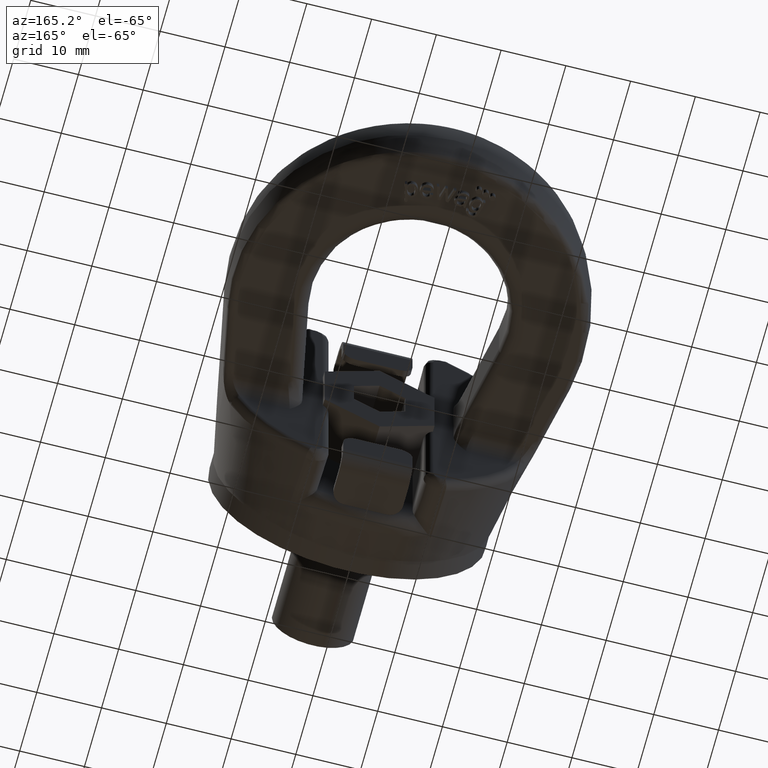
[diagram: clean part render]
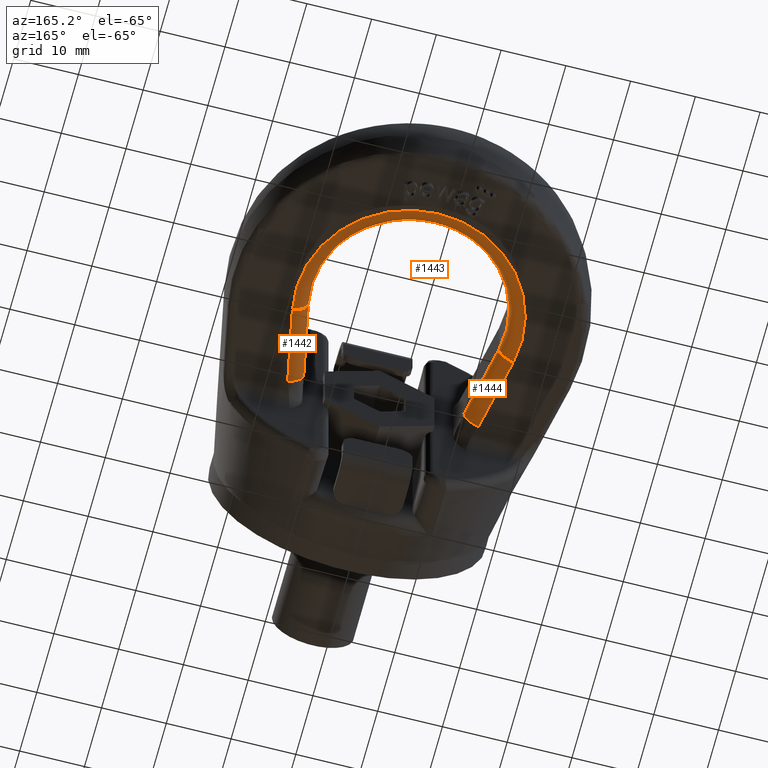
[diagram: same view with one multi-face feature highlighted, each face labeled with its STEP entity id]
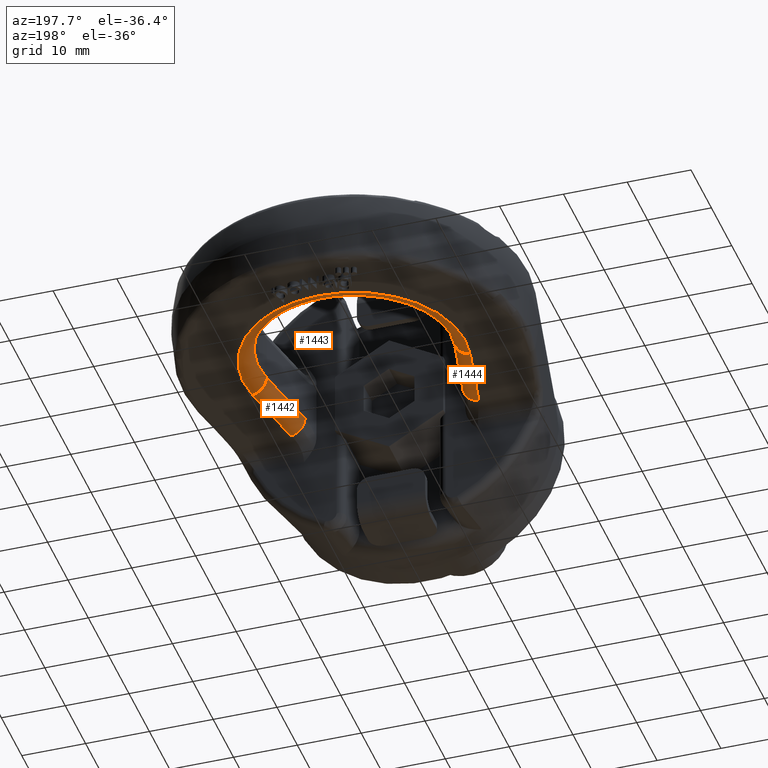
[diagram: same view with one multi-face feature highlighted, each face labeled with its STEP entity id]
A machine part, auxiliary view. The highlighted faces form ONE feature: a constant-radius fillet chain: 3 tangent blend faces with common blend radius 2.4 mm. The faces share edges in the B-rep.
A second angle (auxiliary view) of the same feature is appended — it is thin or edge-on in the first view.
Their STEP definitions:
[1] entity #1444 (Cylinder):
#1071=CYLINDRICAL_SURFACE('',#5242,2.4);
#1214=FACE_OUTER_BOUND('',#1973,.T.);
#1444=ADVANCED_FACE('',(#1214),#1071,.T.);
#1721=CIRCLE('',#5239,2.4);
#1722=CIRCLE('',#5241,2.4);
#1973=EDGE_LOOP('',(#3409,#3410,#3411,#3412));
#2136=LINE('',#6799,#2410);
#2230=LINE('',#8187,#2532);
#2410=VECTOR('',#5468,1.);
#2532=VECTOR('',#5790,1.);
#3409=ORIENTED_EDGE('',*,*,#4618,.F.);
#3410=ORIENTED_EDGE('',*,*,#4358,.F.);
#3411=ORIENTED_EDGE('',*,*,#4619,.F.);
#3412=ORIENTED_EDGE('',*,*,#4565,.F.);
#3966=VERTEX_POINT('',#6791);
#3968=VERTEX_POINT('',#6798);
#4086=VERTEX_POINT('',#8186);
#4087=VERTEX_POINT('',#8188);
#4358=EDGE_CURVE('',#3968,#3966,#2136,.T.);
#4565=EDGE_CURVE('',#4086,#4087,#2230,.T.);
#4618=EDGE_CURVE('',#3966,#4086,#1721,.T.);
#4619=EDGE_CURVE('',#4087,#3968,#1722,.T.);
#5239=AXIS2_PLACEMENT_3D('',#8643,#5867,#5868);
#5241=AXIS2_PLACEMENT_3D('',#8645,#5871,#5872);
#5242=AXIS2_PLACEMENT_3D('',#8646,#5873,#5874);
#5468=DIRECTION('',(-0.19766821154562,0.980268982547319,-3.08528463027214E-16));
#5790=DIRECTION('',(0.19766821154562,-0.980268982547319,3.08528463027214E-16));
#5867=DIRECTION('',(-0.197668211545619,0.980268982547319,-4.63118973645098E-16));
#5868=DIRECTION('',(-0.980268982547319,-0.197668211545619,-2.34910470705193E-15));
#5871=DIRECTION('',(0.197668211545618,-0.98026898254732,4.63118973645094E-16));
#5872=DIRECTION('',(-0.980268982547319,-0.197668211545618,-2.34910470705193E-15));
#5873=DIRECTION('',(-0.19766821154562,0.980268982547319,-3.08528463027214E-16));
#5874=DIRECTION('',(0.980268982547319,0.197668211545619,2.34910470705193E-15));
#6791=CARTESIAN_POINT('',(-14.7040347382098,33.0349768268157,-3.60000000000004));
#6798=CARTESIAN_POINT('',(-12.3728808880105,21.4744037077095,-3.60000000000004));
#6799=CARTESIAN_POINT('',(-14.7040347382098,33.0349768268157,-3.60000000000004));
#8186=CARTESIAN_POINT('',(-17.0566802963233,32.5605731191062,-6.00000000000005));
#8187=CARTESIAN_POINT('',(-14.6298644042528,20.5255962922905,-6.00000000000004));
#8188=CARTESIAN_POINT('',(-14.7255264461241,21.,-6.00000000000004));
#8643=CARTESIAN_POINT('',(-17.0566802963233,32.5605731191062,-3.60000000000005));
#8645=CARTESIAN_POINT('',(-14.7255264461241,21.,-3.60000000000004));
#8646=CARTESIAN_POINT('',(-26.3750966130933,78.7721233242049,-3.60000000000006));
[2] entity #1443 (Torus):
#1023=TOROIDAL_SURFACE('',#5240,17.4,2.4);
#1213=FACE_OUTER_BOUND('',#1972,.T.);
#1443=ADVANCED_FACE('',(#1213),#1023,.T.);
#1682=CIRCLE('',#5106,15.);
#1708=CIRCLE('',#5209,17.4);
#1720=CIRCLE('',#5237,2.4);
#1721=CIRCLE('',#5239,2.4);
#1972=EDGE_LOOP('',(#3405,#3406,#3407,#3408));
#3405=ORIENTED_EDGE('',*,*,#4617,.F.);
#3406=ORIENTED_EDGE('',*,*,#4354,.F.);
#3407=ORIENTED_EDGE('',*,*,#4618,.T.);
#3408=ORIENTED_EDGE('',*,*,#4564,.F.);
#3963=VERTEX_POINT('',#6786);
#3966=VERTEX_POINT('',#6791);
#4085=VERTEX_POINT('',#8185);
#4086=VERTEX_POINT('',#8186);
#4354=EDGE_CURVE('',#3966,#3963,#1682,.T.);
#4564=EDGE_CURVE('',#4085,#4086,#1708,.T.);
#4617=EDGE_CURVE('',#3963,#4085,#1720,.T.);
#4618=EDGE_CURVE('',#3966,#4086,#1721,.T.);
#5106=AXIS2_PLACEMENT_3D('',#6792,#5459,#5460);
#5209=AXIS2_PLACEMENT_3D('',#8184,#5788,#5789);
#5237=AXIS2_PLACEMENT_3D('',#8641,#5863,#5864);
#5239=AXIS2_PLACEMENT_3D('',#8643,#5867,#5868);
#5240=AXIS2_PLACEMENT_3D('',#8644,#5869,#5870);
#5459=DIRECTION('',(2.34291072916505E-15,1.5770213417971E-16,-1.));
#5460=DIRECTION('',(-4.1086505480261E-31,1.,1.44560289664734E-16));
#5788=DIRECTION('',(-2.34291072916505E-15,-1.5770213417971E-16,1.));
#5789=DIRECTION('',(-3.54194012760871E-31,1.,1.4954512723938E-16));
#5863=DIRECTION('',(-0.197668211545619,-0.980268982547319,-4.63118973645096E-16));
#5864=DIRECTION('',(0.980268982547319,-0.197668211545619,2.34910470705193E-15));
#5867=DIRECTION('',(-0.197668211545619,0.980268982547319,-4.63118973645098E-16));
#5868=DIRECTION('',(-0.980268982547319,-0.197668211545619,-2.34910470705193E-15));
#5869=DIRECTION('',(-2.34291072916505E-15,-1.5770213417971E-16,1.));
#5870=DIRECTION('',(-3.89076756441866E-31,1.,1.53321519341384E-16));
#6786=CARTESIAN_POINT('',(14.7040347382098,33.0349768268157,-3.59999999999997));
#6791=CARTESIAN_POINT('',(-14.7040347382098,33.0349768268157,-3.60000000000004));
#6792=CARTESIAN_POINT('',(8.43447862499419E-15,36.,-3.60000000000001));
#8184=CARTESIAN_POINT('',(1.40574643749903E-14,36.,-6.00000000000001));
#8185=CARTESIAN_POINT('',(17.0566802963234,32.5605731191062,-5.99999999999997));
#8186=CARTESIAN_POINT('',(-17.0566802963233,32.5605731191062,-6.00000000000005));
#8641=CARTESIAN_POINT('',(17.0566802963234,32.5605731191062,-3.59999999999997));
#8643=CARTESIAN_POINT('',(-17.0566802963233,32.5605731191062,-3.60000000000005));
#8644=CARTESIAN_POINT('',(8.43447862499419E-15,36.,-3.60000000000001));
[3] entity #1442 (Cylinder):
#1070=CYLINDRICAL_SURFACE('',#5238,2.4);
#1212=FACE_OUTER_BOUND('',#1971,.T.);
#1442=ADVANCED_FACE('',(#1212),#1070,.T.);
#1719=CIRCLE('',#5236,2.4);
#1720=CIRCLE('',#5237,2.4);
#1971=EDGE_LOOP('',(#3401,#3402,#3403,#3404));
#2138=LINE('',#6804,#2412);
#2233=LINE('',#8205,#2535);
#2412=VECTOR('',#5474,1.);
#2535=VECTOR('',#5795,1.);
#3401=ORIENTED_EDGE('',*,*,#4616,.F.);
#3402=ORIENTED_EDGE('',*,*,#4361,.F.);
#3403=ORIENTED_EDGE('',*,*,#4617,.T.);
#3404=ORIENTED_EDGE('',*,*,#4571,.F.);
#3963=VERTEX_POINT('',#6786);
#3970=VERTEX_POINT('',#6805);
#4085=VERTEX_POINT('',#8185);
#4092=VERTEX_POINT('',#8204);
#4361=EDGE_CURVE('',#3963,#3970,#2138,.T.);
#4571=EDGE_CURVE('',#4092,#4085,#2233,.T.);
#4616=EDGE_CURVE('',#3970,#4092,#1719,.T.);
#4617=EDGE_CURVE('',#3963,#4085,#1720,.T.);
#5236=AXIS2_PLACEMENT_3D('',#8622,#5861,#5862);
#5237=AXIS2_PLACEMENT_3D('',#8641,#5863,#5864);
#5238=AXIS2_PLACEMENT_3D('',#8642,#5865,#5866);
#5474=DIRECTION('',(-0.19766821154562,-0.980268982547319,-6.17709484262983E-16));
#5795=DIRECTION('',(0.19766821154562,0.980268982547319,6.17709484262983E-16));
#5861=DIRECTION('',(-0.197668211545619,-0.980268982547319,9.53960707018846E-16));
#5862=DIRECTION('',(0.980268982547319,-0.197668211545619,2.34910470705193E-15));
#5863=DIRECTION('',(-0.197668211545619,-0.980268982547319,-4.63118973645096E-16));
#5864=DIRECTION('',(0.980268982547319,-0.197668211545619,2.34910470705193E-15));
#5865=DIRECTION('',(-0.19766821154562,-0.980268982547319,-6.17709484262983E-16));
#5866=DIRECTION('',(-0.980268982547319,0.197668211545619,-2.34910470705193E-15));
#6786=CARTESIAN_POINT('',(14.7040347382098,33.0349768268157,-3.59999999999997));
#6804=CARTESIAN_POINT('',(12.2772188461393,21.,-3.59999999999998));
#6805=CARTESIAN_POINT('',(12.3728808880105,21.4744037077095,-3.59999999999998));
#8185=CARTESIAN_POINT('',(17.0566802963234,32.5605731191062,-5.99999999999997));
#8204=CARTESIAN_POINT('',(14.7255264461241,21.,-5.99999999999997));
#8205=CARTESIAN_POINT('',(17.0566802963234,32.5605731191062,-5.99999999999997));
#8622=CARTESIAN_POINT('',(14.7255264461241,21.,-3.59999999999997));
#8641=CARTESIAN_POINT('',(17.0566802963234,32.5605731191062,-3.59999999999997));
#8642=CARTESIAN_POINT('',(22.0770972089726,57.4576414966899,-3.59999999999995));